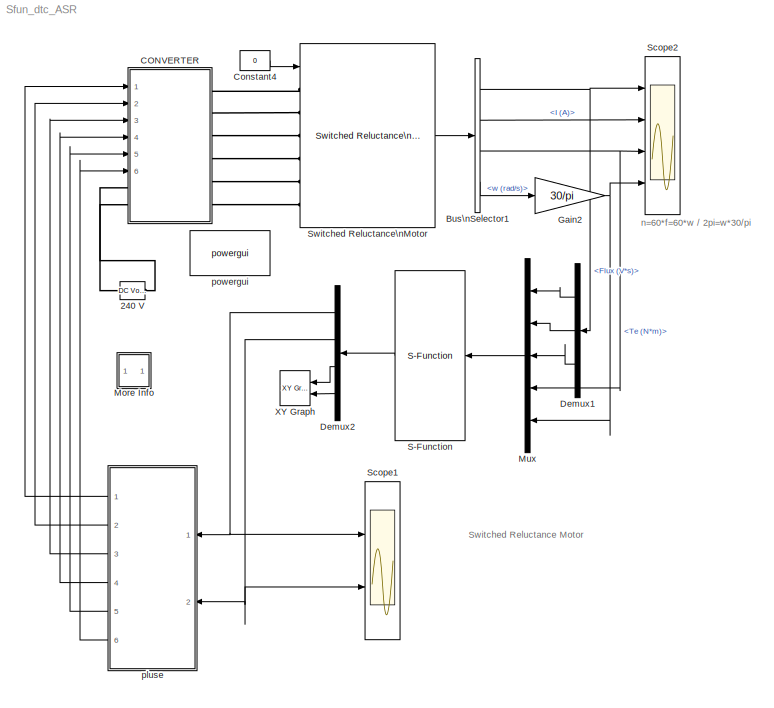
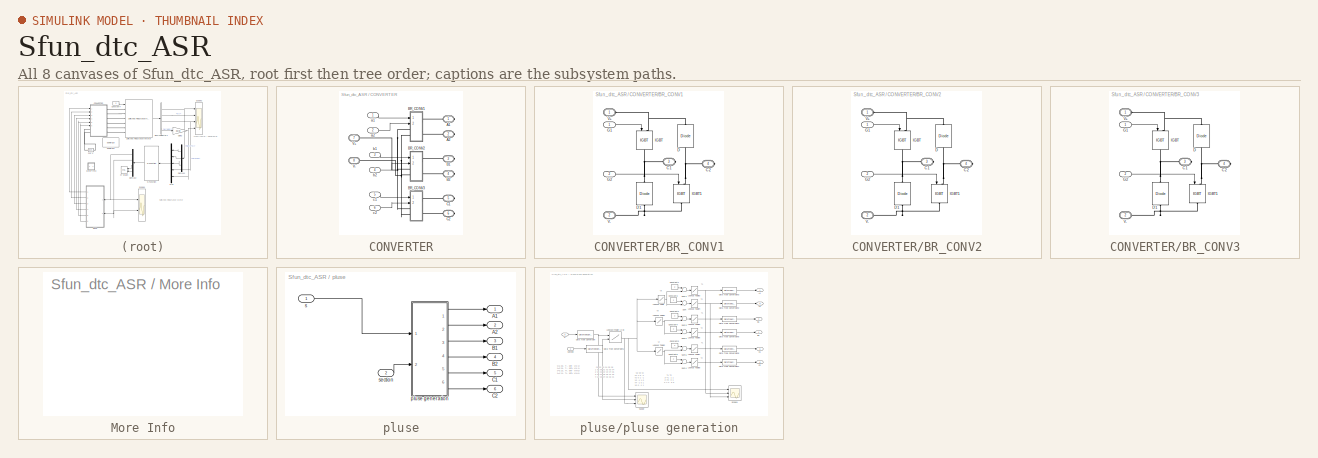
[diagram: thumbnail index - all 8 canvases of the model, root first then tree order]
MODEL Sfun_dtc_ASR
KIND model
CONFIG PreLoadFcn = Ts=1e-5;\nload srm64_60kw
BLOCK [Reference] 240 V  REF=powerlib/Electrical\nSources/DC Voltage Source
  Amplitude = 300
  Measurements = None
  Ports = [0, 0, 0, 0, 0, 1, 1]
  SID = 1
  SourceBlock = powerlib/Electrical\nSources/DC Voltage Source
  SourceType = DC Voltage Source
BLOCK [BusSelector] Bus\nSelector1
  OutputSignals = Flux (V*s),I (A),Te (N*m),w (rad/s)
  Ports = [1, 4]
  SID = 2
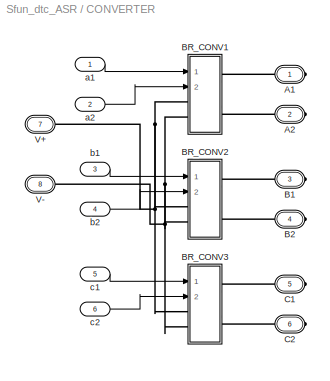
BLOCK [SubSystem] CONVERTER
  LoadFcn = find_system(gcs,'FollowLinks', 'on', 'LookUnderMasks', 'all');
  Ports = [6, 0, 0, 0, 0, 2, 6]
  RequestExecContextInheritance = off
  SID = 3
BLOCK [PMIOPort] CONVERTER/A1
  Port = 1
  SID = 38
  Side = Right
  Tag = PMCPort
BLOCK [PMIOPort] CONVERTER/A2
  Port = 2
  SID = 39
  Side = Right
  Tag = PMCPort
BLOCK [PMIOPort] CONVERTER/B1
  Port = 3
  SID = 40
  Side = Right
  Tag = PMCPort
BLOCK [PMIOPort] CONVERTER/B2
  Port = 4
  SID = 41
  Side = Right
  Tag = PMCPort
BLOCK [SubSystem] CONVERTER/BR_CONV1
  Ports = [2, 0, 0, 0, 0, 2, 2]
  RequestExecContextInheritance = off
  SID = 5
BLOCK [PMIOPort] CONVERTER/BR_CONV1/C1
  Port = 3
  SID = 13
  Side = Right
  Tag = PMCPort
BLOCK [PMIOPort] CONVERTER/BR_CONV1/C2
  Port = 4
  SID = 14
  Side = Right
  Tag = PMCPort
BLOCK [Reference] CONVERTER/BR_CONV1/D  REF=powerlib/Power\nElectronics/Diode
  Cs = inf
  IC = 0
  Lon = 0
  Measurements = off
  Ports = [0, 0, 0, 0, 0, 1, 1]
  Ron = 1e-3
  Rs = 1000
  SID = 7
  SourceBlock = powerlib/Power\nElectronics/Diode
  SourceType = Diode
  UseSnubber = off
  Vf = 0.8
BLOCK [Reference] CONVERTER/BR_CONV1/D1  REF=powerlib/Power\nElectronics/Diode
  Cs = inf
  IC = 0
  Lon = 0
  Measurements = off
  Ports = [0, 0, 0, 0, 0, 1, 1]
  Ron = 1e-3
  Rs = 1000
  SID = 8
  SourceBlock = powerlib/Power\nElectronics/Diode
  SourceType = Diode
  UseSnubber = off
  Vf = 0.8
BLOCK [Inport] CONVERTER/BR_CONV1/G1
  IconDisplay = Port number
  SID = 212
BLOCK [Inport] CONVERTER/BR_CONV1/G2
  IconDisplay = Port number
  Port = 2
  SID = 6
BLOCK [Reference] CONVERTER/BR_CONV1/IGBT  REF=powerlib/Power\nElectronics/IGBT
  Cs = 0.1e-6
  IC = 0
  Lon = 0
  Measurements = off
  Ports = [1, 0, 0, 0, 0, 1, 1]
  Ron = 1e-3
  Rs = 200
  SID = 9
  SourceBlock = powerlib/Power\nElectronics/IGBT
  SourceType = IGBT
  Tf = 0
  Tt = 0
  Vf = 1
BLOCK [Reference] CONVERTER/BR_CONV1/IGBT1  REF=powerlib/Power\nElectronics/IGBT
  Cs = 0.1e-6
  IC = 0
  Lon = 0
  Measurements = off
  Ports = [1, 0, 0, 0, 0, 1, 1]
  Ron = 1e-3
  Rs = 200
  SID = 10
  SourceBlock = powerlib/Power\nElectronics/IGBT
  SourceType = IGBT
  Tf = 0
  Tt = 0
  Vf = 1
BLOCK [PMIOPort] CONVERTER/BR_CONV1/V+
  Port = 1
  SID = 11
  Side = Left
  Tag = PMCPort
BLOCK [PMIOPort] CONVERTER/BR_CONV1/V-
  Port = 2
  SID = 12
  Side = Left
  Tag = PMCPort
BLOCK [SubSystem] CONVERTER/BR_CONV2
  Ports = [2, 0, 0, 0, 0, 2, 2]
  RequestExecContextInheritance = off
  SID = 224
BLOCK [PMIOPort] CONVERTER/BR_CONV2/C1
  Port = 3
  SID = 233
  Side = Right
  Tag = PMCPort
BLOCK [PMIOPort] CONVERTER/BR_CONV2/C2
  Port = 4
  SID = 234
  Side = Right
  Tag = PMCPort
BLOCK [Reference] CONVERTER/BR_CONV2/D  REF=powerlib/Power\nElectronics/Diode
  Cs = inf
  IC = 0
  Lon = 0
  Measurements = off
  Ports = [0, 0, 0, 0, 0, 1, 1]
  Ron = 1e-3
  Rs = 1000
  SID = 227
  SourceBlock = powerlib/Power\nElectronics/Diode
  SourceType = Diode
  UseSnubber = off
  Vf = 0.8
BLOCK [Reference] CONVERTER/BR_CONV2/D1  REF=powerlib/Power\nElectronics/Diode
  Cs = inf
  IC = 0
  Lon = 0
  Measurements = off
  Ports = [0, 0, 0, 0, 0, 1, 1]
  Ron = 1e-3
  Rs = 1000
  SID = 228
  SourceBlock = powerlib/Power\nElectronics/Diode
  SourceType = Diode
  UseSnubber = off
  Vf = 0.8
BLOCK [Inport] CONVERTER/BR_CONV2/G1
  IconDisplay = Port number
  SID = 225
BLOCK [Inport] CONVERTER/BR_CONV2/G2
  IconDisplay = Port number
  Port = 2
  SID = 226
BLOCK [Reference] CONVERTER/BR_CONV2/IGBT  REF=powerlib/Power\nElectronics/IGBT
  Cs = 0.1e-6
  IC = 0
  Lon = 0
  Measurements = off
  Ports = [1, 0, 0, 0, 0, 1, 1]
  Ron = 1e-3
  Rs = 200
  SID = 229
  SourceBlock = powerlib/Power\nElectronics/IGBT
  SourceType = IGBT
  Tf = 0
  Tt = 0
  Vf = 1
BLOCK [Reference] CONVERTER/BR_CONV2/IGBT1  REF=powerlib/Power\nElectronics/IGBT
  Cs = 0.1e-6
  IC = 0
  Lon = 0
  Measurements = off
  Ports = [1, 0, 0, 0, 0, 1, 1]
  Ron = 1e-3
  Rs = 200
  SID = 230
  SourceBlock = powerlib/Power\nElectronics/IGBT
  SourceType = IGBT
  Tf = 0
  Tt = 0
  Vf = 1
BLOCK [PMIOPort] CONVERTER/BR_CONV2/V+
  Port = 1
  SID = 231
  Side = Left
  Tag = PMCPort
BLOCK [PMIOPort] CONVERTER/BR_CONV2/V-
  Port = 2
  SID = 232
  Side = Left
  Tag = PMCPort
BLOCK [SubSystem] CONVERTER/BR_CONV3
  Ports = [2, 0, 0, 0, 0, 2, 2]
  RequestExecContextInheritance = off
  SID = 235
BLOCK [PMIOPort] CONVERTER/BR_CONV3/C1
  Port = 3
  SID = 244
  Side = Right
  Tag = PMCPort
BLOCK [PMIOPort] CONVERTER/BR_CONV3/C2
  Port = 4
  SID = 245
  Side = Right
  Tag = PMCPort
BLOCK [Reference] CONVERTER/BR_CONV3/D  REF=powerlib/Power\nElectronics/Diode
  Cs = inf
  IC = 0
  Lon = 0
  Measurements = off
  Ports = [0, 0, 0, 0, 0, 1, 1]
  Ron = 1e-3
  Rs = 1000
  SID = 238
  SourceBlock = powerlib/Power\nElectronics/Diode
  SourceType = Diode
  UseSnubber = off
  Vf = 0.8
BLOCK [Reference] CONVERTER/BR_CONV3/D1  REF=powerlib/Power\nElectronics/Diode
  Cs = inf
  IC = 0
  Lon = 0
  Measurements = off
  Ports = [0, 0, 0, 0, 0, 1, 1]
  Ron = 1e-3
  Rs = 1000
  SID = 239
  SourceBlock = powerlib/Power\nElectronics/Diode
  SourceType = Diode
  UseSnubber = off
  Vf = 0.8
BLOCK [Inport] CONVERTER/BR_CONV3/G1
  IconDisplay = Port number
  SID = 236
BLOCK [Inport] CONVERTER/BR_CONV3/G2
  IconDisplay = Port number
  Port = 2
  SID = 237
BLOCK [Reference] CONVERTER/BR_CONV3/IGBT  REF=powerlib/Power\nElectronics/IGBT
  Cs = 0.1e-6
  IC = 0
  Lon = 0
  Measurements = off
  Ports = [1, 0, 0, 0, 0, 1, 1]
  Ron = 1e-3
  Rs = 200
  SID = 240
  SourceBlock = powerlib/Power\nElectronics/IGBT
  SourceType = IGBT
  Tf = 0
  Tt = 0
  Vf = 1
BLOCK [Reference] CONVERTER/BR_CONV3/IGBT1  REF=powerlib/Power\nElectronics/IGBT
  Cs = 0.1e-6
  IC = 0
  Lon = 0
  Measurements = off
  Ports = [1, 0, 0, 0, 0, 1, 1]
  Ron = 1e-3
  Rs = 200
  SID = 241
  SourceBlock = powerlib/Power\nElectronics/IGBT
  SourceType = IGBT
  Tf = 0
  Tt = 0
  Vf = 1
BLOCK [PMIOPort] CONVERTER/BR_CONV3/V+
  Port = 1
  SID = 242
  Side = Left
  Tag = PMCPort
BLOCK [PMIOPort] CONVERTER/BR_CONV3/V-
  Port = 2
  SID = 243
  Side = Left
  Tag = PMCPort
BLOCK [PMIOPort] CONVERTER/C1
  Port = 5
  SID = 42
  Side = Right
  Tag = PMCPort
BLOCK [PMIOPort] CONVERTER/C2
  Port = 6
  SID = 43
  Side = Right
  Tag = PMCPort
BLOCK [PMIOPort] CONVERTER/V+
  Port = 7
  SID = 254
  Side = Left
  Tag = PMCPort
BLOCK [PMIOPort] CONVERTER/V-
  Port = 8
  SID = 255
  Side = Left
  Tag = PMCPort
BLOCK [Inport] CONVERTER/a1
  IconDisplay = Port number
  SID = 246
BLOCK [Inport] CONVERTER/a2
  IconDisplay = Port number
  Port = 2
  SID = 247
BLOCK [Inport] CONVERTER/b1
  IconDisplay = Port number
  Port = 3
  SID = 248
BLOCK [Inport] CONVERTER/b2
  IconDisplay = Port number
  Port = 4
  SID = 249
BLOCK [Inport] CONVERTER/c1
  IconDisplay = Port number
  Port = 5
  SID = 250
BLOCK [Inport] CONVERTER/c2
  IconDisplay = Port number
  Port = 6
  SID = 256
BLOCK [Constant] Constant4
  SID = 46
  Value = 0
BLOCK [Demux] Demux1
  DisplayOption = bar
  Outputs = 3
  Ports = [1, 3]
  SID = 268
BLOCK [Demux] Demux2
  DisplayOption = bar
  Ports = [1, 4]
  SID = 271
BLOCK [Gain] Gain2
  Gain = 30/pi
  SID = 48
BLOCK [SubSystem] More Info
  OpenFcn = showdemo(bdroot(gcb))
  Ports = []
  RequestExecContextInheritance = off
  SID = 49
BLOCK [Mux] Mux
  DisplayOption = bar
  Inputs = 5
  Ports = [5, 1]
  SID = 269
BLOCK [S-Function] S-Function
  FunctionName = d_sfunc_dtc
  Parameters = 0.25,3000,1e-4,1e-3,30
  Ports = [1, 1]
  SID = 267
BLOCK [Scope] Scope1
  DataFormat = StructureWithTime
  Decimation = 10
  Floating = off
  LimitDataPoints = off
  NumInputPorts = 2
  Ports = [2]
  SID = 272
  SampleTime = 0
  SaveName = VI1
  SaveToWorkspace = on
  TimeRange = 0.1
  YMax = 4~6
  YMin = 1~1
  ZoomMode = xonly
BLOCK [Scope] Scope2
  DataFormat = StructureWithTime
  Decimation = 10
  Floating = off
  LimitDataPoints = off
  NumInputPorts = 4
  Ports = [4]
  SID = 64
  SampleTime = 0
  SaveName = VI
  SaveToWorkspace = on
  TimeRange = 1
  YMax = 0.35~550~150~4500
  YMin = -0.05~-50~-200~-500
  ZoomMode = yonly
BLOCK [Reference] Switched Reluctance\nMotor  REF=powerlib/Machines/Switched Reluctance\nMotor
  Friction = 0.02
  Inertia = 0.05
  InitialSpeed = [0,0]
  Ld = 23.6e-3
  Lq = 0.67e-3
  Lsat = 0.15e-3
  MachineModel = Generic model
  MachineType = 6/4
  MagnetisationCharacteristic = 'srm64_60kw.mat'
  MaximumCurrent = 450
  MaximumFluxLinkage = 0.486
  PlotCurves = off
  Ports = [1, 1, 0, 0, 0, 6]
  RotorAngleVector = [0 10 20 30 40 45]
  SID = 66
  Source = MAT-file
  SourceBlock = powerlib/Machines/Switched Reluctance\nMotor
  SourceType = Switched Reluctance Motor
  StatorCurrentVector = 0:25:450
  StatorResistance = 0.05
  TsBlock = -1
  TsPowergui = 0
BLOCK [Reference] XY Graph  REF=simulink/Sinks/XY Graph
  Ports = [2]
  SID = 270
  SourceBlock = simulink/Sinks/XY Graph
  SourceType = XY scope.
  st = -1
  xmax = 1
  xmin = -1
  ymax = 1
  ymin = -1
BLOCK [SubSystem] pluse
  Ports = [2, 6]
  RequestExecContextInheritance = off
  SID = 126
BLOCK [Outport] pluse/A1
  IconDisplay = Port number
  SID = 206
BLOCK [Outport] pluse/A2
  IconDisplay = Port number
  Port = 2
  SID = 207
BLOCK [Outport] pluse/B1
  IconDisplay = Port number
  Port = 3
  SID = 208
BLOCK [Outport] pluse/B2
  IconDisplay = Port number
  Port = 4
  SID = 209
BLOCK [Outport] pluse/C1
  IconDisplay = Port number
  Port = 5
  SID = 210
BLOCK [Outport] pluse/C2
  IconDisplay = Port number
  Port = 6
  SID = 211
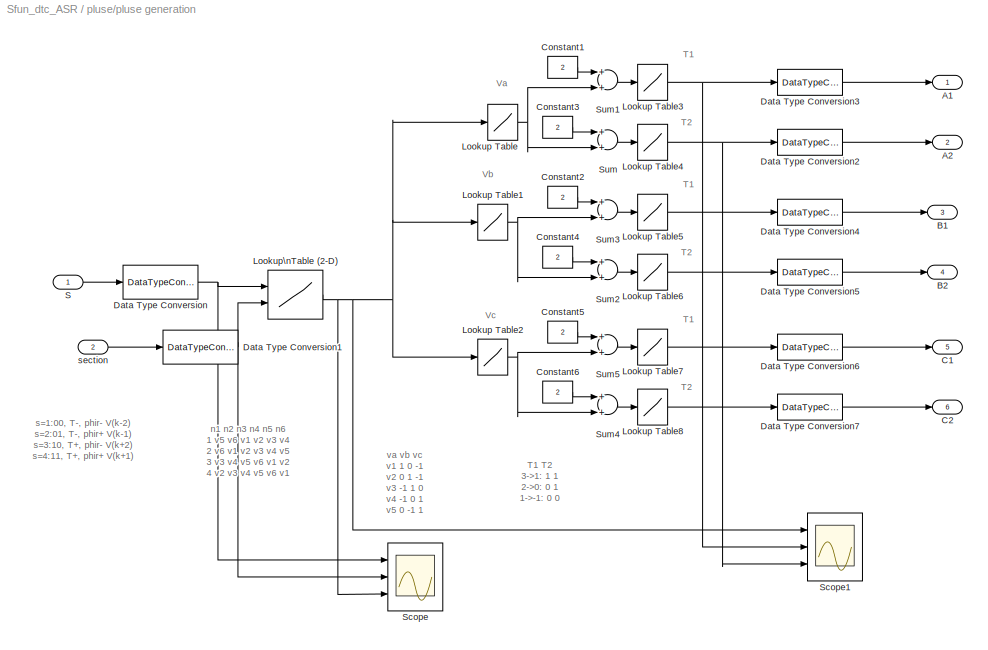
BLOCK [SubSystem] pluse/pluse generation
  Ports = [2, 6]
  RequestExecContextInheritance = off
  SID = 149
BLOCK [Outport] pluse/pluse generation/A1
  IconDisplay = Port number
  SID = 168
BLOCK [Outport] pluse/pluse generation/A2
  IconDisplay = Port number
  Port = 2
  SID = 201
BLOCK [Outport] pluse/pluse generation/B1
  IconDisplay = Port number
  Port = 3
  SID = 202
BLOCK [Outport] pluse/pluse generation/B2
  IconDisplay = Port number
  Port = 4
  SID = 203
BLOCK [Outport] pluse/pluse generation/C1
  IconDisplay = Port number
  Port = 5
  SID = 204
BLOCK [Outport] pluse/pluse generation/C2
  IconDisplay = Port number
  Port = 6
  SID = 205
BLOCK [Constant] pluse/pluse generation/Constant1
  SID = 188
  Value = 2
BLOCK [Constant] pluse/pluse generation/Constant2
  SID = 189
  Value = 2
BLOCK [Constant] pluse/pluse generation/Constant3
  SID = 186
  Value = 2
BLOCK [Constant] pluse/pluse generation/Constant4
  SID = 190
  Value = 2
BLOCK [Constant] pluse/pluse generation/Constant5
  SID = 195
  Value = 2
BLOCK [Constant] pluse/pluse generation/Constant6
  SID = 196
  Value = 2
BLOCK [DataTypeConversion] pluse/pluse generation/Data Type Conversion
  OutDataTypeStr = int16
  RndMeth = Floor
  SID = 155
  SaturateOnIntegerOverflow = off
BLOCK [DataTypeConversion] pluse/pluse generation/Data Type Conversion1
  OutDataTypeStr = int16
  RndMeth = Floor
  SID = 156
  SaturateOnIntegerOverflow = off
BLOCK [DataTypeConversion] pluse/pluse generation/Data Type Conversion2
  OutDataTypeStr = double
  RndMeth = Floor
  SID = 157
  SaturateOnIntegerOverflow = off
BLOCK [DataTypeConversion] pluse/pluse generation/Data Type Conversion3
  OutDataTypeStr = double
  RndMeth = Floor
  SID = 158
  SaturateOnIntegerOverflow = off
BLOCK [DataTypeConversion] pluse/pluse generation/Data Type Conversion4
  OutDataTypeStr = double
  RndMeth = Floor
  SID = 159
  SaturateOnIntegerOverflow = off
BLOCK [DataTypeConversion] pluse/pluse generation/Data Type Conversion5
  OutDataTypeStr = double
  RndMeth = Floor
  SID = 160
  SaturateOnIntegerOverflow = off
BLOCK [DataTypeConversion] pluse/pluse generation/Data Type Conversion6
  OutDataTypeStr = double
  RndMeth = Floor
  SID = 161
  SaturateOnIntegerOverflow = off
BLOCK [DataTypeConversion] pluse/pluse generation/Data Type Conversion7
  OutDataTypeStr = double
  RndMeth = Floor
  SID = 162
  SaturateOnIntegerOverflow = off
BLOCK [Lookup] pluse/pluse generation/Lookup Table
  InputValues = [1:6]
  SID = 164
  SaturateOnIntegerOverflow = off
  Table = [1 0 -1 -1 0 1]
BLOCK [Lookup] pluse/pluse generation/Lookup Table1
  InputValues = [1:6]
  SID = 165
  SaturateOnIntegerOverflow = off
  Table = [0 1 1 0 -1 -1]
BLOCK [Lookup] pluse/pluse generation/Lookup Table2
  InputValues = [1:6]
  SID = 166
  SaturateOnIntegerOverflow = off
  Table = [-1 -1 0 1 1 0]
BLOCK [Lookup] pluse/pluse generation/Lookup Table3
  InputValues = [1:3]
  SID = 183
  SaturateOnIntegerOverflow = off
  Table = [0 0 1]
BLOCK [Lookup] pluse/pluse generation/Lookup Table4
  InputValues = [1:3]
  SID = 184
  SaturateOnIntegerOverflow = off
  Table = [0 1 1]
BLOCK [Lookup] pluse/pluse generation/Lookup Table5
  InputValues = [1:3]
  SID = 191
  SaturateOnIntegerOverflow = off
  Table = [0 0 1]
BLOCK [Lookup] pluse/pluse generation/Lookup Table6
  InputValues = [1:3]
  SID = 192
  SaturateOnIntegerOverflow = off
  Table = [0 1 1]
BLOCK [Lookup] pluse/pluse generation/Lookup Table7
  InputValues = [1:3]
  SID = 197
  SaturateOnIntegerOverflow = off
  Table = [0 0 1]
BLOCK [Lookup] pluse/pluse generation/Lookup Table8
  InputValues = [1:3]
  SID = 198
  SaturateOnIntegerOverflow = off
  Table = [0 1 1]
BLOCK [Lookup2D] pluse/pluse generation/Lookup\nTable (2-D)
  ColumnIndex = [1:6]
  InputSameDT = off
  RowIndex = [1:4]
  SID = 163
  SaturateOnIntegerOverflow = off
  Table = [5 6 1 2 3 4;6 1 2 3 4 5;3 4 5 6 1 2;2 3 4 5 6 1]
BLOCK [Inport] pluse/pluse generation/S
  IconDisplay = Port number
  SID = 150
BLOCK [Scope] pluse/pluse generation/Scope
  DataFormat = StructureWithTime
  Floating = off
  NumInputPorts = 3
  Ports = [3]
  SID = 264
  SampleTime = 0
  YMax = 4~6~6
  YMin = 4~1~1
  ZoomMode = xonly
BLOCK [Scope] pluse/pluse generation/Scope1
  DataFormat = StructureWithTime
  Floating = off
  NumInputPorts = 3
  Ports = [3]
  SID = 265
  SampleTime = 0
  SaveName = ScopeData1
  YMax = 6~1~1
  YMin = 1~0~0
  ZoomMode = yonly
BLOCK [Sum] pluse/pluse generation/Sum
  InputSameDT = off
  OutDataTypeStr = Inherit: Inherit via internal rule
  Ports = [2, 1]
  SID = 185
  SaturateOnIntegerOverflow = off
BLOCK [Sum] pluse/pluse generation/Sum1
  InputSameDT = off
  OutDataTypeStr = Inherit: Inherit via internal rule
  Ports = [2, 1]
  SID = 187
  SaturateOnIntegerOverflow = off
BLOCK [Sum] pluse/pluse generation/Sum2
  InputSameDT = off
  OutDataTypeStr = Inherit: Inherit via internal rule
  Ports = [2, 1]
  SID = 193
  SaturateOnIntegerOverflow = off
BLOCK [Sum] pluse/pluse generation/Sum3
  InputSameDT = off
  OutDataTypeStr = Inherit: Inherit via internal rule
  Ports = [2, 1]
  SID = 194
  SaturateOnIntegerOverflow = off
BLOCK [Sum] pluse/pluse generation/Sum4
  InputSameDT = off
  OutDataTypeStr = Inherit: Inherit via internal rule
  Ports = [2, 1]
  SID = 199
  SaturateOnIntegerOverflow = off
BLOCK [Sum] pluse/pluse generation/Sum5
  InputSameDT = off
  OutDataTypeStr = Inherit: Inherit via internal rule
  Ports = [2, 1]
  SID = 200
  SaturateOnIntegerOverflow = off
BLOCK [Inport] pluse/pluse generation/section
  IconDisplay = Port number
  Port = 2
  SID = 151
BLOCK [Inport] pluse/s
  IconDisplay = Port number
  SID = 127
BLOCK [Inport] pluse/section
  IconDisplay = Port number
  Port = 2
  SID = 131
BLOCK [Reference] powergui  REF=powerlib/powergui
  DisableRonSwitches = off
  DisableSnubberDevices = off
  DisableVfSwitches = off
  DisplayEquations = off
  DisplayStyle = 1
  EnableUseOfTLC = off
  ErrMax = 1e-4
  Frange = [0:2:500]
  FreqAxis = off
  FunctionMessages = off
  HookPort = off
  Interpol = off
  Iterations = 50
  MaxFrequency = 1000
  Pbase = 100e6
  Ports = []
  Priority = 2
  ResistiveCurrentMeasurement = off
  RestoreLinks = warning
  RmsSteady = 1
  SID = 67
  SPID = off
  SampleTime = 1e-5
  ShowGrid = off
  SolverType = Tustin/Backward Euler (TBE)
  SourceBlock = powerlib/powergui
  SourceType = PSB option menu block
  StartTime = 0.0
  SwTol = 0
  Ts = 0
  UnitsV = kV
  UnitsW = MW
  UserData = DataTag0
  UserDataPersistent = on
  Xlog = on
  Ylog = off
  ZoomFFT = on
  buscounter = 0
  cycles = 1
  display = off
  echomessages = off
  frequency = 60
  frequencyindice = 0
  frequencyindicesteady = 1
  fundamental = 60
  methode = off
  save = off
  structure = 0
  variable = ZData
  x0status = blocks
ANNOTATION (root): Switched Reluctance Motor
ANNOTATION (root): n=60*f=60*w / 2pi=w*30/pi
ANNOTATION pluse/pluse generation: n1 n2 n3 n4 n5 n6\n 1 v5 v6 v1 v2 v3 v4\n 2 v6 v1 v2 v3 v4 v5\n 3 v3 v4 v5 v6 v1 v2\n 4 v2 v3 v4 v5 v6 v1
ANNOTATION pluse/pluse generation: T1 T2\n3->1: 1 1\n2->0: 0 1\n1->-1: 0 0
ANNOTATION pluse/pluse generation: va vb vc\nv1 1 0 -1\nv2 0 1 -1\nv3 -1 1 0\nv4 -1 0 1\nv5 0 -1 1\nv6 1 -1 0
ANNOTATION pluse/pluse generation: T1
ANNOTATION pluse/pluse generation: T2
ANNOTATION pluse/pluse generation: Va
ANNOTATION pluse/pluse generation: Vb
ANNOTATION pluse/pluse generation: Vc
ANNOTATION pluse/pluse generation: s=1:00, T-, phir- V(k-2) \ns=2:01, T-, phir+ V(k-1) \ns=3:10, T+, phir- V(k+2) \ns=4:11, T+, phir+ V(k+1)
NET Bus\nSelector1:1 -> Demux1:1, Scope2:1
LINE Bus\nSelector1:2 -> Scope2:2
NET Bus\nSelector1:3 -> Mux:4, Scope2:3
LINE Bus\nSelector1:4 -> Gain2:1
LINE CONVERTER/BR_CONV1/G1:1 -> CONVERTER/BR_CONV1/IGBT:1
LINE CONVERTER/BR_CONV1/G2:1 -> CONVERTER/BR_CONV1/IGBT1:1
LINE CONVERTER/BR_CONV2/G1:1 -> CONVERTER/BR_CONV2/IGBT:1
LINE CONVERTER/BR_CONV2/G2:1 -> CONVERTER/BR_CONV2/IGBT1:1
LINE CONVERTER/BR_CONV3/G1:1 -> CONVERTER/BR_CONV3/IGBT:1
LINE CONVERTER/BR_CONV3/G2:1 -> CONVERTER/BR_CONV3/IGBT1:1
LINE CONVERTER/a1:1 -> CONVERTER/BR_CONV1:1
LINE CONVERTER/a2:1 -> CONVERTER/BR_CONV1:2
LINE CONVERTER/b1:1 -> CONVERTER/BR_CONV2:1
LINE CONVERTER/b2:1 -> CONVERTER/BR_CONV2:2
LINE CONVERTER/c1:1 -> CONVERTER/BR_CONV3:1
LINE CONVERTER/c2:1 -> CONVERTER/BR_CONV3:2
LINE Constant4:1 -> Switched Reluctance\nMotor:1
LINE Demux1:1 -> Mux:1
LINE Demux1:2 -> Mux:2
LINE Demux1:3 -> Mux:3
NET Demux2:1 -> Scope1:1, pluse:1
NET Demux2:2 -> Scope1:2, pluse:2
LINE Demux2:3 -> XY Graph:1
LINE Demux2:4 -> XY Graph:2
NET Gain2:1 -> Mux:5, Scope2:4
LINE Mux:1 -> S-Function:1
LINE S-Function:1 -> Demux2:1
LINE Switched Reluctance\nMotor:1 -> Bus\nSelector1:1
LINE pluse/pluse generation/Constant1:1 -> pluse/pluse generation/Sum1:1
LINE pluse/pluse generation/Constant2:1 -> pluse/pluse generation/Sum3:1
LINE pluse/pluse generation/Constant3:1 -> pluse/pluse generation/Sum:1
LINE pluse/pluse generation/Constant4:1 -> pluse/pluse generation/Sum2:1
LINE pluse/pluse generation/Constant5:1 -> pluse/pluse generation/Sum5:1
LINE pluse/pluse generation/Constant6:1 -> pluse/pluse generation/Sum4:1
NET pluse/pluse generation/Data Type Conversion1:1 -> pluse/pluse generation/Lookup\nTable (2-D):2, pluse/pluse generation/Scope:2
LINE pluse/pluse generation/Data Type Conversion2:1 -> pluse/pluse generation/A2:1
LINE pluse/pluse generation/Data Type Conversion3:1 -> pluse/pluse generation/A1:1
LINE pluse/pluse generation/Data Type Conversion4:1 -> pluse/pluse generation/B1:1
LINE pluse/pluse generation/Data Type Conversion5:1 -> pluse/pluse generation/B2:1
LINE pluse/pluse generation/Data Type Conversion6:1 -> pluse/pluse generation/C1:1
LINE pluse/pluse generation/Data Type Conversion7:1 -> pluse/pluse generation/C2:1
NET pluse/pluse generation/Data Type Conversion:1 -> pluse/pluse generation/Lookup\nTable (2-D):1, pluse/pluse generation/Scope:1
NET pluse/pluse generation/Lookup Table1:1 -> pluse/pluse generation/Sum2:2, pluse/pluse generation/Sum3:2
NET pluse/pluse generation/Lookup Table2:1 -> pluse/pluse generation/Sum4:2, pluse/pluse generation/Sum5:2
NET pluse/pluse generation/Lookup Table3:1 -> pluse/pluse generation/Data Type Conversion3:1, pluse/pluse generation/Scope1:2
NET pluse/pluse generation/Lookup Table4:1 -> pluse/pluse generation/Data Type Conversion2:1, pluse/pluse generation/Scope1:3
LINE pluse/pluse generation/Lookup Table5:1 -> pluse/pluse generation/Data Type Conversion4:1
LINE pluse/pluse generation/Lookup Table6:1 -> pluse/pluse generation/Data Type Conversion5:1
LINE pluse/pluse generation/Lookup Table7:1 -> pluse/pluse generation/Data Type Conversion6:1
LINE pluse/pluse generation/Lookup Table8:1 -> pluse/pluse generation/Data Type Conversion7:1
NET pluse/pluse generation/Lookup Table:1 -> pluse/pluse generation/Sum1:2, pluse/pluse generation/Sum:2
NET pluse/pluse generation/Lookup\nTable (2-D):1 -> pluse/pluse generation/Lookup Table1:1, pluse/pluse generation/Lookup Table2:1, pluse/pluse generation/Lookup Table:1, pluse/pluse generation/Scope1:1, pluse/pluse generation/Scope:3
LINE pluse/pluse generation/S:1 -> pluse/pluse generation/Data Type Conversion:1
LINE pluse/pluse generation/Sum1:1 -> pluse/pluse generation/Lookup Table3:1
LINE pluse/pluse generation/Sum2:1 -> pluse/pluse generation/Lookup Table6:1
LINE pluse/pluse generation/Sum3:1 -> pluse/pluse generation/Lookup Table5:1
LINE pluse/pluse generation/Sum4:1 -> pluse/pluse generation/Lookup Table8:1
LINE pluse/pluse generation/Sum5:1 -> pluse/pluse generation/Lookup Table7:1
LINE pluse/pluse generation/Sum:1 -> pluse/pluse generation/Lookup Table4:1
LINE pluse/pluse generation/section:1 -> pluse/pluse generation/Data Type Conversion1:1
LINE pluse/pluse generation:1 -> pluse/A1:1
LINE pluse/pluse generation:2 -> pluse/A2:1
LINE pluse/pluse generation:3 -> pluse/B1:1
LINE pluse/pluse generation:4 -> pluse/B2:1
LINE pluse/pluse generation:5 -> pluse/C1:1
LINE pluse/pluse generation:6 -> pluse/C2:1
LINE pluse/s:1 -> pluse/pluse generation:1
LINE pluse/section:1 -> pluse/pluse generation:2
LINE pluse:1 -> CONVERTER:1
LINE pluse:2 -> CONVERTER:2
LINE pluse:3 -> CONVERTER:3
LINE pluse:4 -> CONVERTER:4
LINE pluse:5 -> CONVERTER:5
LINE pluse:6 -> CONVERTER:6
PLINE 240 V:LConn1 -- CONVERTER:LConn2
PLINE 240 V:RConn1 -- CONVERTER:LConn1
PLINE CONVERTER/A1:RConn1 -- CONVERTER/BR_CONV1:RConn1
PLINE CONVERTER/A2:RConn1 -- CONVERTER/BR_CONV1:RConn2
PLINE CONVERTER/B1:RConn1 -- CONVERTER/BR_CONV2:RConn1
PLINE CONVERTER/B2:RConn1 -- CONVERTER/BR_CONV2:RConn2
PNET net1: CONVERTER/BR_CONV1/C1:RConn1 -- CONVERTER/BR_CONV1/D1:RConn1 -- CONVERTER/BR_CONV1/IGBT:RConn1
PNET net2: CONVERTER/BR_CONV1/C2:RConn1 -- CONVERTER/BR_CONV1/D:LConn1 -- CONVERTER/BR_CONV1/IGBT1:LConn1
PNET net3: CONVERTER/BR_CONV1/D1:LConn1 -- CONVERTER/BR_CONV1/IGBT1:RConn1 -- CONVERTER/BR_CONV1/V-:RConn1
PNET net4: CONVERTER/BR_CONV1/D:RConn1 -- CONVERTER/BR_CONV1/IGBT:LConn1 -- CONVERTER/BR_CONV1/V+:RConn1
PNET net5: CONVERTER/BR_CONV1:LConn1 -- CONVERTER/BR_CONV2:LConn1 -- CONVERTER/BR_CONV3:LConn1 -- CONVERTER/V+:RConn1
PNET net6: CONVERTER/BR_CONV1:LConn2 -- CONVERTER/BR_CONV2:LConn2 -- CONVERTER/BR_CONV3:LConn2 -- CONVERTER/V-:RConn1
PNET net7: CONVERTER/BR_CONV2/C1:RConn1 -- CONVERTER/BR_CONV2/D1:RConn1 -- CONVERTER/BR_CONV2/IGBT:RConn1
PNET net8: CONVERTER/BR_CONV2/C2:RConn1 -- CONVERTER/BR_CONV2/D:LConn1 -- CONVERTER/BR_CONV2/IGBT1:LConn1
PNET net9: CONVERTER/BR_CONV2/D1:LConn1 -- CONVERTER/BR_CONV2/IGBT1:RConn1 -- CONVERTER/BR_CONV2/V-:RConn1
PNET net10: CONVERTER/BR_CONV2/D:RConn1 -- CONVERTER/BR_CONV2/IGBT:LConn1 -- CONVERTER/BR_CONV2/V+:RConn1
PNET net11: CONVERTER/BR_CONV3/C1:RConn1 -- CONVERTER/BR_CONV3/D1:RConn1 -- CONVERTER/BR_CONV3/IGBT:RConn1
PNET net12: CONVERTER/BR_CONV3/C2:RConn1 -- CONVERTER/BR_CONV3/D:LConn1 -- CONVERTER/BR_CONV3/IGBT1:LConn1
PNET net13: CONVERTER/BR_CONV3/D1:LConn1 -- CONVERTER/BR_CONV3/IGBT1:RConn1 -- CONVERTER/BR_CONV3/V-:RConn1
PNET net14: CONVERTER/BR_CONV3/D:RConn1 -- CONVERTER/BR_CONV3/IGBT:LConn1 -- CONVERTER/BR_CONV3/V+:RConn1
PLINE CONVERTER/BR_CONV3:RConn1 -- CONVERTER/C1:RConn1
PLINE CONVERTER/BR_CONV3:RConn2 -- CONVERTER/C2:RConn1
PLINE CONVERTER:RConn1 -- Switched Reluctance\nMotor:LConn1
PLINE CONVERTER:RConn2 -- Switched Reluctance\nMotor:LConn2
PLINE CONVERTER:RConn3 -- Switched Reluctance\nMotor:LConn3
PLINE CONVERTER:RConn4 -- Switched Reluctance\nMotor:LConn4
PLINE CONVERTER:RConn5 -- Switched Reluctance\nMotor:LConn5
PLINE CONVERTER:RConn6 -- Switched Reluctance\nMotor:LConn6
note: NET lines group one-source signal fan-out (src -> all destinations, sorted); 1:1 wires keep LINE; PNET lines group multi-terminal physical nets as a canonical sorted terminal list (undirected conserving connections); 2-terminal nets keep the pairwise PLINE form
